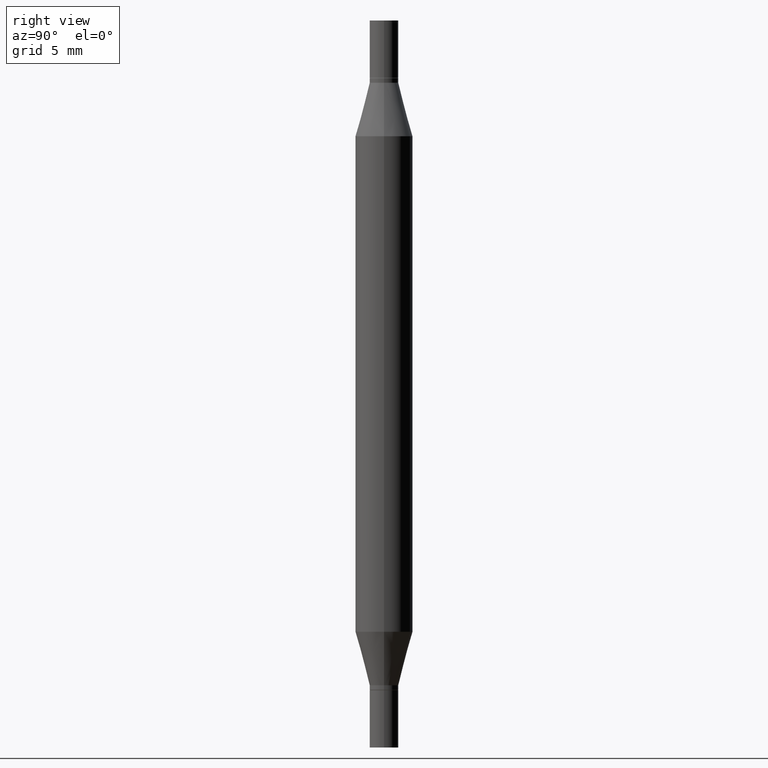
[diagram: clean part render]
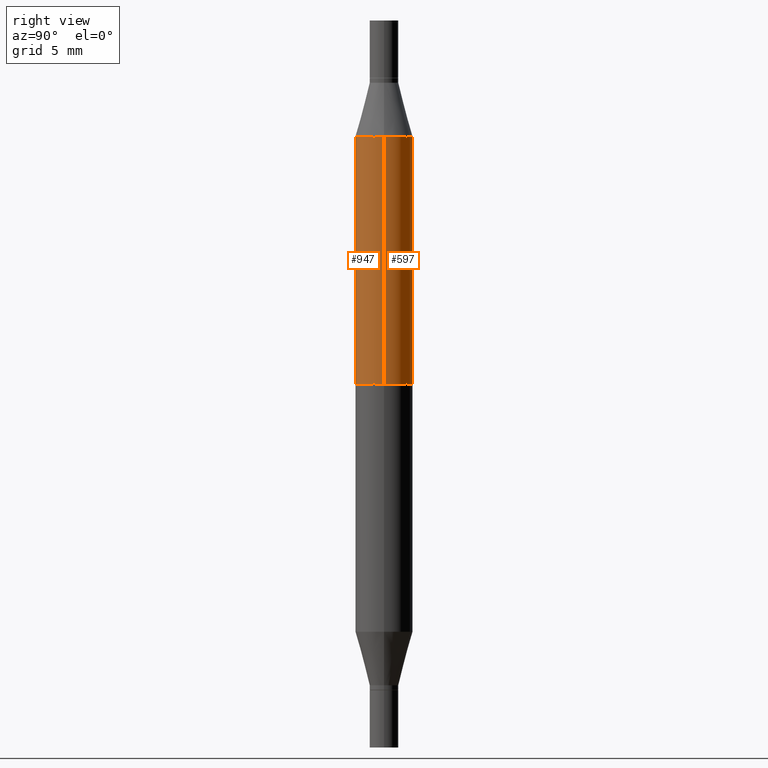
[diagram: same view with one multi-face feature highlighted, each face labeled with its STEP entity id]
A machine part, right view. The highlighted faces form ONE feature: a constant-radius fillet chain: 2 tangent blend faces with common blend radius 1.4999 mm. The faces share edges in the B-rep.
Their STEP definitions:
[1] entity #597 (Cylinder):
#13 = VECTOR ( 'NONE', #600, 39.37007874015748143 ) ;
#20 = CARTESIAN_POINT ( 'NONE',  ( 3.076410765668156654E-29, -8.311408901143919011E-16, -0.2380954988232820146 ) ) ;
#61 = LINE ( 'NONE', #444, #577 ) ;
#122 = ORIENTED_EDGE ( 'NONE', *, *, #740, .F. ) ;
#190 = DIRECTION ( 'NONE',  ( 2.445468806185136597E-29, 3.491805094961124077E-15, 1.000000000000000000 ) ) ;
#202 = CIRCLE ( 'NONE', #717, 0.05904999999999999832 ) ;
#204 = FACE_OUTER_BOUND ( 'NONE', #505, .T. ) ;
#236 = AXIS2_PLACEMENT_3D ( 'NONE', #796, #726, #583 ) ;
#241 = ORIENTED_EDGE ( 'NONE', *, *, #658, .T. ) ;
#246 = DIRECTION ( 'NONE',  ( -0.000000000000000000, -3.491643216902134830E-15, -1.000000000000000000 ) ) ;
#276 = EDGE_CURVE ( 'NONE', #522, #538, #437, .T. ) ;
#347 = DIRECTION ( 'NONE',  ( 1.000000000000000000, -6.982962677686265133E-15, 0.000000000000000000 ) ) ;
#368 = VERTEX_POINT ( 'NONE', #633 ) ;
#372 = DIRECTION ( 'NONE',  ( -2.445468806185136877E-29, -3.491805094961123683E-15, -1.000000000000000000 ) ) ;
#400 = CARTESIAN_POINT ( 'NONE',  ( 1.829332940466791194E-29, -2.611802615521614830E-15, -0.7480499999999999927 ) ) ;
#437 = CIRCLE ( 'NONE', #762, 0.05905000000000000526 ) ;
#444 = CARTESIAN_POINT ( 'NONE',  ( 0.05905000000000000526, -5.636191362924657961E-15, -1.496099999999999985 ) ) ;
#470 = VERTEX_POINT ( 'NONE', #626 ) ;
#486 = CARTESIAN_POINT ( 'NONE',  ( -0.05905000000000000526, -1.316359346049593906E-15, -0.7480499999999999927 ) ) ;
#503 = CYLINDRICAL_SURFACE ( 'NONE', #236, 0.05905000000000000526 ) ;
#505 = EDGE_LOOP ( 'NONE', ( #122, #529, #241, #724 ) ) ;
#514 = LINE ( 'NONE', #761, #13 ) ;
#522 = VERTEX_POINT ( 'NONE', #486 ) ;
#529 = ORIENTED_EDGE ( 'NONE', *, *, #802, .F. ) ;
#538 = VERTEX_POINT ( 'NONE', #847 ) ;
#577 = VECTOR ( 'NONE', #372, 39.37007874015748143 ) ;
#583 = DIRECTION ( 'NONE',  ( 1.000000000000000000, -6.982962677686272233E-15, 0.000000000000000000 ) ) ;
#597 = ADVANCED_FACE ( 'NONE', ( #204 ), #503, .T. ) ;
#600 = DIRECTION ( 'NONE',  ( -2.445468806185136877E-29, -3.491805094961123683E-15, -1.000000000000000000 ) ) ;
#626 = CARTESIAN_POINT ( 'NONE',  ( 0.05904999999999999832, -1.243484836231766624E-15, -0.2380954988232820146 ) ) ;
#633 = CARTESIAN_POINT ( 'NONE',  ( -0.05904999999999999832, -4.260284833459836245E-16, -0.2380954988232820146 ) ) ;
#658 = EDGE_CURVE ( 'NONE', #470, #538, #61, .T. ) ;
#717 = AXIS2_PLACEMENT_3D ( 'NONE', #20, #190, #347 ) ;
#724 = ORIENTED_EDGE ( 'NONE', *, *, #276, .F. ) ;
#726 = DIRECTION ( 'NONE',  ( -2.445468806185136597E-29, -3.491805094961124077E-15, -1.000000000000000000 ) ) ;
#740 = EDGE_CURVE ( 'NONE', #368, #522, #514, .T. ) ;
#761 = CARTESIAN_POINT ( 'NONE',  ( -0.05905000000000000526, -4.818735010038875060E-15, -1.496099999999999985 ) ) ;
#762 = AXIS2_PLACEMENT_3D ( 'NONE', #400, #246, #896 ) ;
#796 = CARTESIAN_POINT ( 'NONE',  ( 0.000000000000000000, -5.223847416807283040E-15, -1.496099999999999985 ) ) ;
#802 = EDGE_CURVE ( 'NONE', #470, #368, #202, .T. ) ;
#847 = CARTESIAN_POINT ( 'NONE',  ( 0.05905000000000000526, -2.133815698935376609E-15, -0.7480499999999999927 ) ) ;
#896 = DIRECTION ( 'NONE',  ( 0.000000000000000000, 1.000000000000000000, -4.626330217890369336E-15 ) ) ;
[2] entity #947 (Cylinder):
#12 = ORIENTED_EDGE ( 'NONE', *, *, #740, .T. ) ;
#13 = VECTOR ( 'NONE', #600, 39.37007874015748143 ) ;
#32 = AXIS2_PLACEMENT_3D ( 'NONE', #708, #343, #631 ) ;
#61 = LINE ( 'NONE', #444, #577 ) ;
#92 = ORIENTED_EDGE ( 'NONE', *, *, #658, .F. ) ;
#109 = FACE_OUTER_BOUND ( 'NONE', #178, .T. ) ;
#138 = AXIS2_PLACEMENT_3D ( 'NONE', #540, #451, #519 ) ;
#178 = EDGE_LOOP ( 'NONE', ( #296, #12, #926, #92 ) ) ;
#209 = CARTESIAN_POINT ( 'NONE',  ( 3.076410765668156654E-29, -8.311408901143919011E-16, -0.2380954988232820146 ) ) ;
#211 = DIRECTION ( 'NONE',  ( 2.445468806185136597E-29, 3.491805094961124077E-15, 1.000000000000000000 ) ) ;
#296 = ORIENTED_EDGE ( 'NONE', *, *, #648, .F. ) ;
#336 = AXIS2_PLACEMENT_3D ( 'NONE', #209, #211, #356 ) ;
#343 = DIRECTION ( 'NONE',  ( -2.445468806185136597E-29, -3.491805094961124077E-15, -1.000000000000000000 ) ) ;
#355 = EDGE_CURVE ( 'NONE', #538, #522, #396, .T. ) ;
#356 = DIRECTION ( 'NONE',  ( 1.000000000000000000, -6.982962677686265133E-15, 0.000000000000000000 ) ) ;
#368 = VERTEX_POINT ( 'NONE', #633 ) ;
#372 = DIRECTION ( 'NONE',  ( -2.445468806185136877E-29, -3.491805094961123683E-15, -1.000000000000000000 ) ) ;
#396 = CIRCLE ( 'NONE', #138, 0.05905000000000000526 ) ;
#412 = CYLINDRICAL_SURFACE ( 'NONE', #32, 0.05905000000000000526 ) ;
#444 = CARTESIAN_POINT ( 'NONE',  ( 0.05905000000000000526, -5.636191362924657961E-15, -1.496099999999999985 ) ) ;
#451 = DIRECTION ( 'NONE',  ( -0.000000000000000000, -3.491643216902134830E-15, -1.000000000000000000 ) ) ;
#470 = VERTEX_POINT ( 'NONE', #626 ) ;
#486 = CARTESIAN_POINT ( 'NONE',  ( -0.05905000000000000526, -1.316359346049593906E-15, -0.7480499999999999927 ) ) ;
#514 = LINE ( 'NONE', #761, #13 ) ;
#519 = DIRECTION ( 'NONE',  ( 0.000000000000000000, 1.000000000000000000, -4.626330217890369336E-15 ) ) ;
#522 = VERTEX_POINT ( 'NONE', #486 ) ;
#538 = VERTEX_POINT ( 'NONE', #847 ) ;
#540 = CARTESIAN_POINT ( 'NONE',  ( 1.829332940466791194E-29, -2.611802615521614830E-15, -0.7480499999999999927 ) ) ;
#577 = VECTOR ( 'NONE', #372, 39.37007874015748143 ) ;
#600 = DIRECTION ( 'NONE',  ( -2.445468806185136877E-29, -3.491805094961123683E-15, -1.000000000000000000 ) ) ;
#626 = CARTESIAN_POINT ( 'NONE',  ( 0.05904999999999999832, -1.243484836231766624E-15, -0.2380954988232820146 ) ) ;
#631 = DIRECTION ( 'NONE',  ( 1.000000000000000000, -6.982962677686272233E-15, 0.000000000000000000 ) ) ;
#633 = CARTESIAN_POINT ( 'NONE',  ( -0.05904999999999999832, -4.260284833459836245E-16, -0.2380954988232820146 ) ) ;
#648 = EDGE_CURVE ( 'NONE', #368, #470, #906, .T. ) ;
#658 = EDGE_CURVE ( 'NONE', #470, #538, #61, .T. ) ;
#708 = CARTESIAN_POINT ( 'NONE',  ( 0.000000000000000000, -5.223847416807283040E-15, -1.496099999999999985 ) ) ;
#740 = EDGE_CURVE ( 'NONE', #368, #522, #514, .T. ) ;
#761 = CARTESIAN_POINT ( 'NONE',  ( -0.05905000000000000526, -4.818735010038875060E-15, -1.496099999999999985 ) ) ;
#847 = CARTESIAN_POINT ( 'NONE',  ( 0.05905000000000000526, -2.133815698935376609E-15, -0.7480499999999999927 ) ) ;
#906 = CIRCLE ( 'NONE', #336, 0.05904999999999999832 ) ;
#926 = ORIENTED_EDGE ( 'NONE', *, *, #355, .F. ) ;
#947 = ADVANCED_FACE ( 'NONE', ( #109 ), #412, .T. ) ;